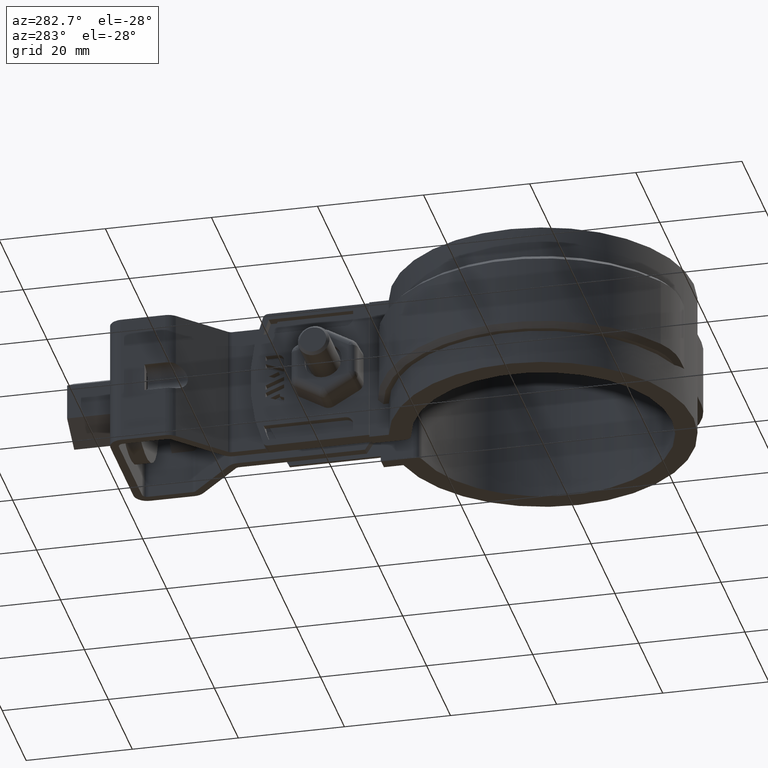
[diagram: clean part render]
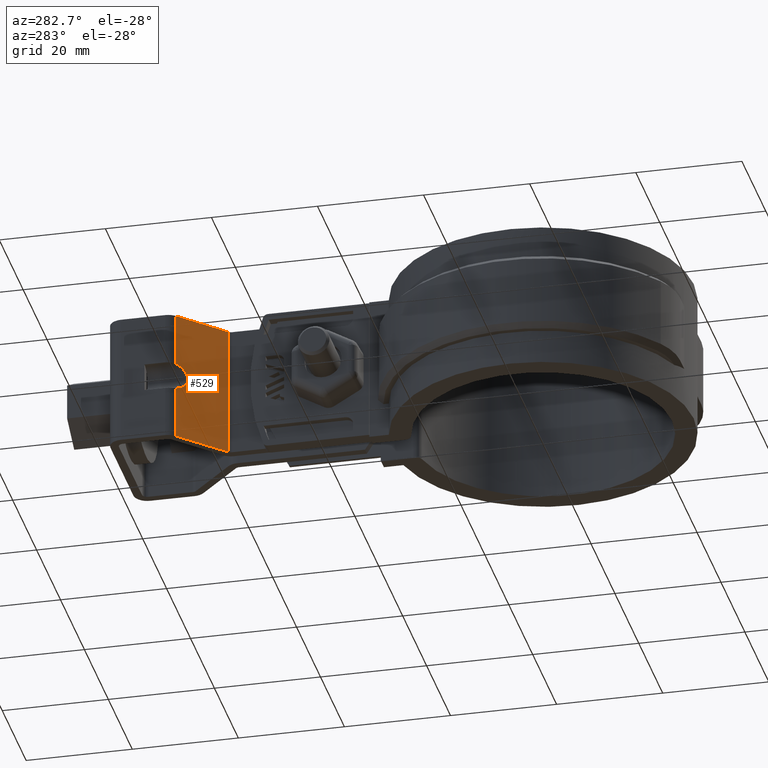
[diagram: same view with one face highlighted and labeled with its STEP entity id]
A machine part, auxiliary view. The second image highlights one B-rep face of the part: STEP entity #529.
In plain terms, the highlighted planar face has unit normal (-0.6983, -0.7158, 0).
Its self-contained STEP definition (entity closure, byte-faithful):
#529 = ADVANCED_FACE( '', ( #1061 ), #1062, .T. );
#1061 = FACE_OUTER_BOUND( '', #2446, .T. );
#1062 = PLANE( '', #2447 );
#2446 = EDGE_LOOP( '', ( #6096, #6097, #6098, #6099, #6100, #6101 ) );
#2447 = AXIS2_PLACEMENT_3D( '', #6102, #6103, #6104 );
#6096 = ORIENTED_EDGE( '', *, *, #8099, .F. );
#6097 = ORIENTED_EDGE( '', *, *, #8167, .T. );
#6098 = ORIENTED_EDGE( '', *, *, #8086, .T. );
#6099 = ORIENTED_EDGE( '', *, *, #8148, .T. );
#6100 = ORIENTED_EDGE( '', *, *, #8156, .F. );
#6101 = ORIENTED_EDGE( '', *, *, #8166, .T. );
#6102 = CARTESIAN_POINT( '', ( -3.90167616505177, 59.2598213101280, -6.13798040172142E-008 ) );
#6103 = DIRECTION( '', ( -0.698323835528018, -0.715781964520927, 3.65652942179987E-010 ) );
#6104 = DIRECTION( '', ( -0.715781964520927, 0.698323835528018, 2.02978157715076E-026 ) );
#8086 = EDGE_CURVE( '', #9390, #9388, #9391, .F. );
#8099 = EDGE_CURVE( '', #9413, #9415, #9416, .T. );
#8148 = EDGE_CURVE( '', #9388, #9496, #9498, .T. );
#8156 = EDGE_CURVE( '', #9512, #9496, #9513, .T. );
#8166 = EDGE_CURVE( '', #9512, #9415, #9526, .T. );
#8167 = EDGE_CURVE( '', #9413, #9390, #9527, .T. );
#9388 = VERTEX_POINT( '', #13511 );
#9390 = VERTEX_POINT( '', #13513 );
#9391 = LINE( '', #13514, #13515 );
#9413 = VERTEX_POINT( '', #13545 );
#9415 = VERTEX_POINT( '', #13547 );
#9416 = LINE( '', #13548, #13549 );
#9496 = VERTEX_POINT( '', #13678 );
#9498 = LINE( '', #13687, #13688 );
#9512 = VERTEX_POINT( '', #13704 );
#9513 = ELLIPSE( '', #13705, 3.70224472166267, 2.64999999999997 );
#9526 = LINE( '', #13733, #13734 );
#9527 = LINE( '', #13735, #13736 );
#13511 = CARTESIAN_POINT( '', ( -11.4656419729872, 66.6392998058393, -6.51194874548343E-008 ) );
#13513 = CARTESIAN_POINT( '', ( -3.30167616504972, 58.6744554835404, -6.10831634664848E-008 ) );
#13514 = CARTESIAN_POINT( '', ( -3.90167616505177, 59.2598213101280, -6.13798078241404E-008 ) );
#13515 = VECTOR( '', #15379, 1000.00000000000 );
#13545 = CARTESIAN_POINT( '', ( -3.30167616510066, 58.6744554708190, -25.0000000610831 ) );
#13547 = CARTESIAN_POINT( '', ( -11.4656419730381, 66.6392997931179, -25.0000000651195 ) );
#13548 = CARTESIAN_POINT( '', ( -15.6164735713164, 70.6888914090239, -25.0000000671717 ) );
#13549 = VECTOR( '', #15400, 1000.00000000000 );
#13678 = CARTESIAN_POINT( '', ( -11.4656419730075, 66.6392998007666, -9.96873901882125 ) );
#13687 = CARTESIAN_POINT( '', ( -11.4656419729872, 66.6392998058393, -6.51194931311494E-008 ) );
#13688 = VECTOR( '', #15477, 1000.00000000000 );
#13704 = CARTESIAN_POINT( '', ( -11.4656419730178, 66.6392997981905, -15.0312611114177 ) );
#13705 = AXIS2_PLACEMENT_3D( '', #15495, #15496, #15497 );
#13733 = CARTESIAN_POINT( '', ( -11.4656419729872, 66.6392998058393, -6.51194931311494E-008 ) );
#13734 = VECTOR( '', #15510, 1000.00000000000 );
#13735 = CARTESIAN_POINT( '', ( -3.30167616504973, 58.6744554835404, -6.10831801806100E-008 ) );
#13736 = VECTOR( '', #15511, 1000.00000000000 );
#15379 = DIRECTION( '', ( 0.715781964520927, -0.698323835528018, 3.53887801810090E-010 ) );
#15400 = DIRECTION( '', ( -0.715781964520927, 0.698323835528018, -3.53887801810090E-010 ) );
#15477 = DIRECTION( '', ( -2.03765905561465E-012, -5.08856068393049E-010, -1.00000000000000 ) );
#15495 = CARTESIAN_POINT( '', ( -12.2500000006359, 67.4045271081099, -12.5000000655073 ) );
#15496 = DIRECTION( '', ( -0.698323835528018, -0.715781964520927, 3.65652942179987E-010 ) );
#15497 = DIRECTION( '', ( 0.715781964520927, -0.698323835528018, 3.53887801810090E-010 ) );
#15510 = DIRECTION( '', ( -2.03765905561465E-012, -5.08856068393049E-010, -1.00000000000000 ) );
#15511 = DIRECTION( '', ( 2.03772028593234E-012, 5.08856008656157E-010, 1.00000000000000 ) );